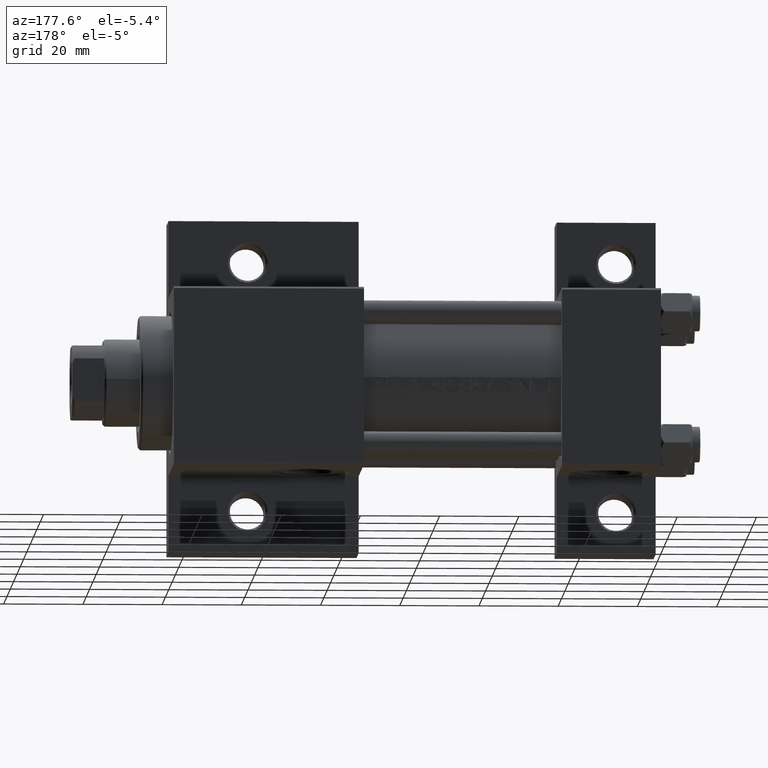
[diagram: clean part render]
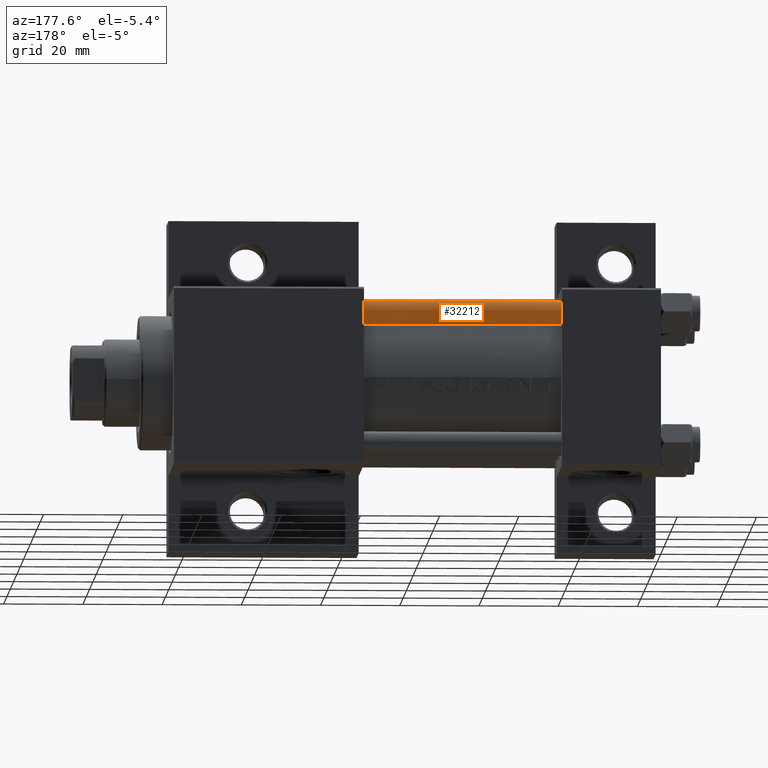
[diagram: same view with one face highlighted and labeled with its STEP entity id]
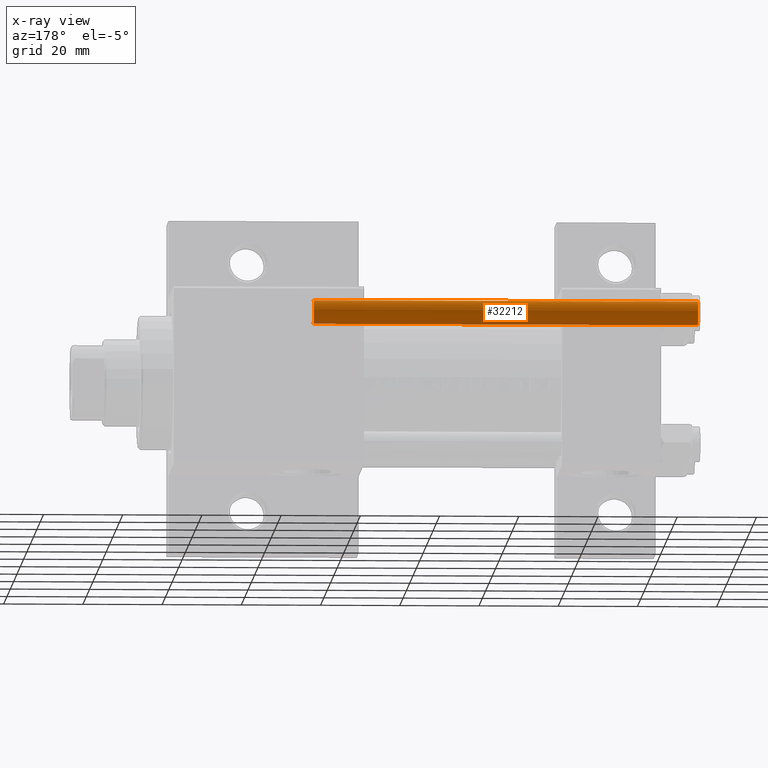
[diagram: x-ray of the same camera — body ghosted, the highlighted face saturated]
A machine part, auxiliary view. The second image highlights one B-rep face of the part: STEP entity #32212.
The next image is the same camera in x-ray: the body ghosted, the highlighted face saturated — about 0% of this face is hidden behind the body in this view.
In plain terms, the highlighted cylindrical surface (edge-blend (fillet) strip) has radius 3 mm, axis along (-1, -0, -0).
Its self-contained STEP definition (entity closure, byte-faithful):
#525 = DIRECTION ( 'NONE',  ( -0.000000000000000000, -0.000000000000000000, -1.000000000000000000 ) ) ;
#755 = CARTESIAN_POINT ( 'NONE',  ( -3.000000000000000444, 0.000000000000000000, 98.00000000000000000 ) ) ;
#1110 = CARTESIAN_POINT ( 'NONE',  ( 0.000000000000000000, 0.000000000000000000, 98.00000000000000000 ) ) ;
#1303 = EDGE_CURVE ( 'NONE', #20064, #2718, #10616, .T. ) ;
#2718 = VERTEX_POINT ( 'NONE', #16630 ) ;
#5191 = DIRECTION ( 'NONE',  ( -1.000000000000000000, 0.000000000000000000, 0.000000000000000000 ) ) ;
#5436 = CARTESIAN_POINT ( 'NONE',  ( -3.000000000000000444, 0.000000000000000000, 97.50000000000001421 ) ) ;
#8898 = CARTESIAN_POINT ( 'NONE',  ( 0.000000000000000000, 0.000000000000000000, 97.50000000000001421 ) ) ;
#9031 = LINE ( 'NONE', #45344, #13233 ) ;
#10616 = CIRCLE ( 'NONE', #18321, 3.000000000000000444 ) ;
#10835 = AXIS2_PLACEMENT_3D ( 'NONE', #15873, #31476, #28358 ) ;
#11654 = VECTOR ( 'NONE', #525, 1000.000000000000000 ) ;
#12634 = VERTEX_POINT ( 'NONE', #38755 ) ;
#13233 = VECTOR ( 'NONE', #30444, 1000.000000000000000 ) ;
#14509 = ORIENTED_EDGE ( 'NONE', *, *, #28379, .F. ) ;
#15873 = CARTESIAN_POINT ( 'NONE',  ( 0.000000000000000000, 0.000000000000000000, 0.5000000000000281997 ) ) ;
#16630 = CARTESIAN_POINT ( 'NONE',  ( 3.000000000000000444, 3.673940397442060361E-16, 97.50000000000001421 ) ) ;
#17421 = ORIENTED_EDGE ( 'NONE', *, *, #1303, .T. ) ;
#18321 = AXIS2_PLACEMENT_3D ( 'NONE', #8898, #46178, #42317 ) ;
#20064 = VERTEX_POINT ( 'NONE', #5436 ) ;
#20827 = CIRCLE ( 'NONE', #10835, 3.000000000000000444 ) ;
#23202 = CARTESIAN_POINT ( 'NONE',  ( 3.000000000000000444, 3.673940397442060361E-16, 0.5000000000000281997 ) ) ;
#25651 = ORIENTED_EDGE ( 'NONE', *, *, #26312, .T. ) ;
#26312 = EDGE_CURVE ( 'NONE', #26821, #12634, #20827, .T. ) ;
#26728 = LINE ( 'NONE', #755, #11654 ) ;
#26821 = VERTEX_POINT ( 'NONE', #23202 ) ;
#27895 = AXIS2_PLACEMENT_3D ( 'NONE', #1110, #34524, #5191 ) ;
#28358 = DIRECTION ( 'NONE',  ( 1.000000000000000000, 0.000000000000000000, 0.000000000000000000 ) ) ;
#28379 = EDGE_CURVE ( 'NONE', #20064, #12634, #26728, .T. ) ;
#30444 = DIRECTION ( 'NONE',  ( -0.000000000000000000, -0.000000000000000000, -1.000000000000000000 ) ) ;
#30921 = CYLINDRICAL_SURFACE ( 'NONE', #27895, 3.000000000000000444 ) ;
#31476 = DIRECTION ( 'NONE',  ( -0.000000000000000000, -0.000000000000000000, 1.000000000000000000 ) ) ;
#32212 = ADVANCED_FACE ( 'NONE', ( #41980 ), #30921, .T. ) ;
#34524 = DIRECTION ( 'NONE',  ( -0.000000000000000000, -0.000000000000000000, -1.000000000000000000 ) ) ;
#35827 = EDGE_LOOP ( 'NONE', ( #17421, #42813, #25651, #14509 ) ) ;
#38755 = CARTESIAN_POINT ( 'NONE',  ( -3.000000000000000444, 0.000000000000000000, 0.5000000000000281997 ) ) ;
#38999 = EDGE_CURVE ( 'NONE', #2718, #26821, #9031, .T. ) ;
#41980 = FACE_OUTER_BOUND ( 'NONE', #35827, .T. ) ;
#42317 = DIRECTION ( 'NONE',  ( 1.000000000000000000, 0.000000000000000000, 0.000000000000000000 ) ) ;
#42813 = ORIENTED_EDGE ( 'NONE', *, *, #38999, .T. ) ;
#45344 = CARTESIAN_POINT ( 'NONE',  ( 3.000000000000000444, 3.673940397442060361E-16, 98.00000000000000000 ) ) ;
#46178 = DIRECTION ( 'NONE',  ( 0.000000000000000000, 0.000000000000000000, -1.000000000000000000 ) ) ;